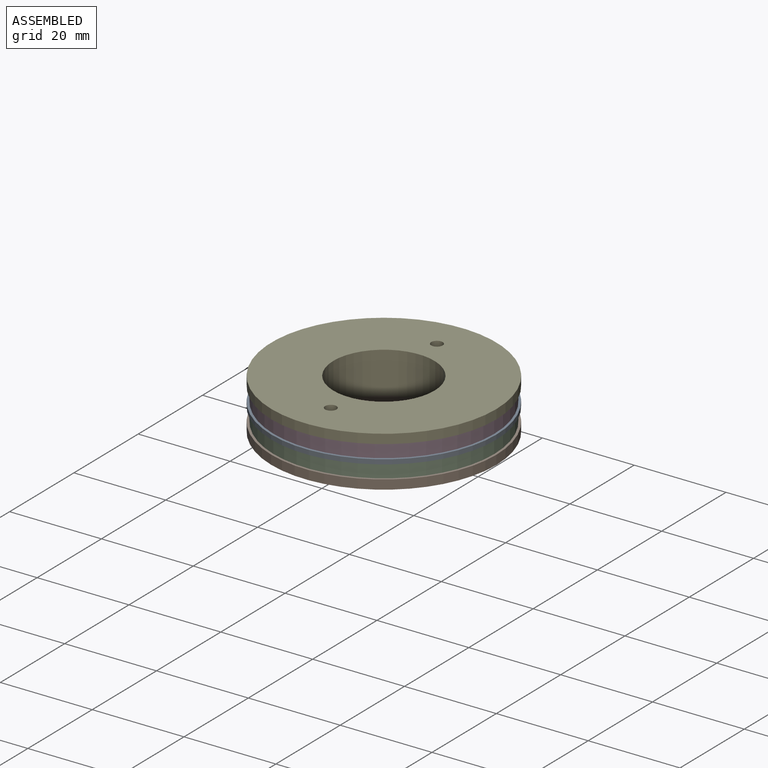
[diagram: assembled view]
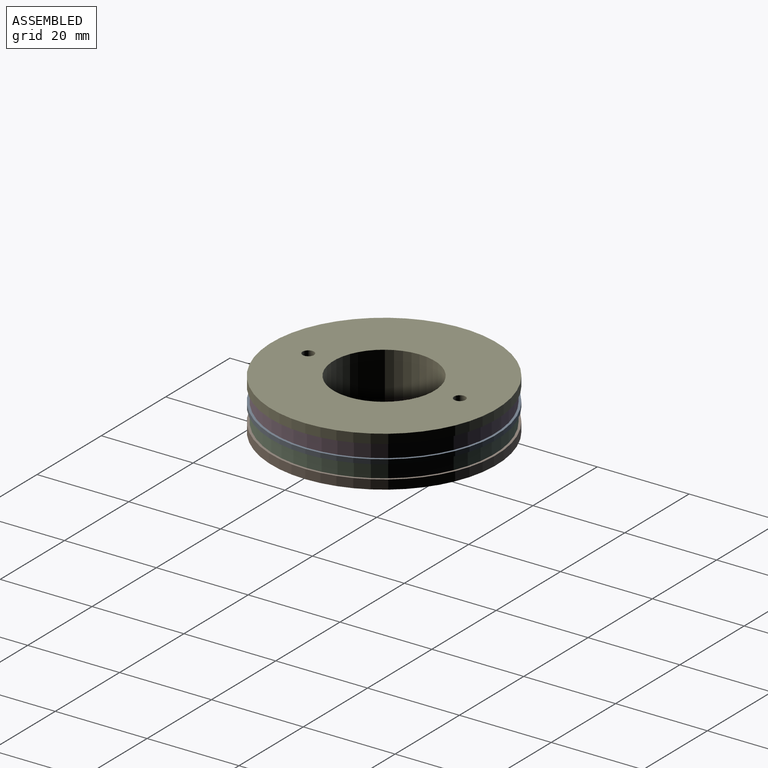
[diagram: assembled view, second angle]
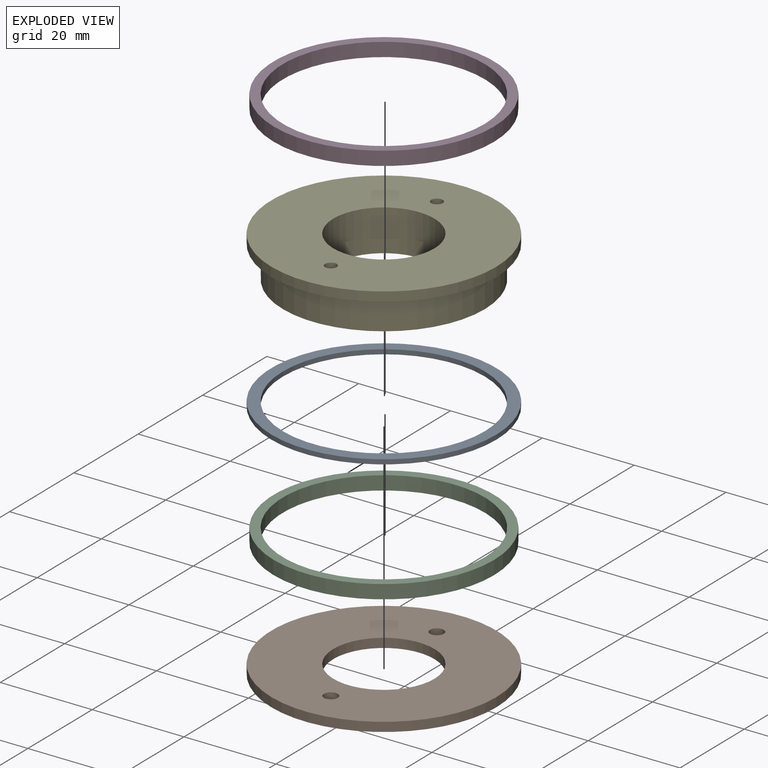
[diagram: exploded view]
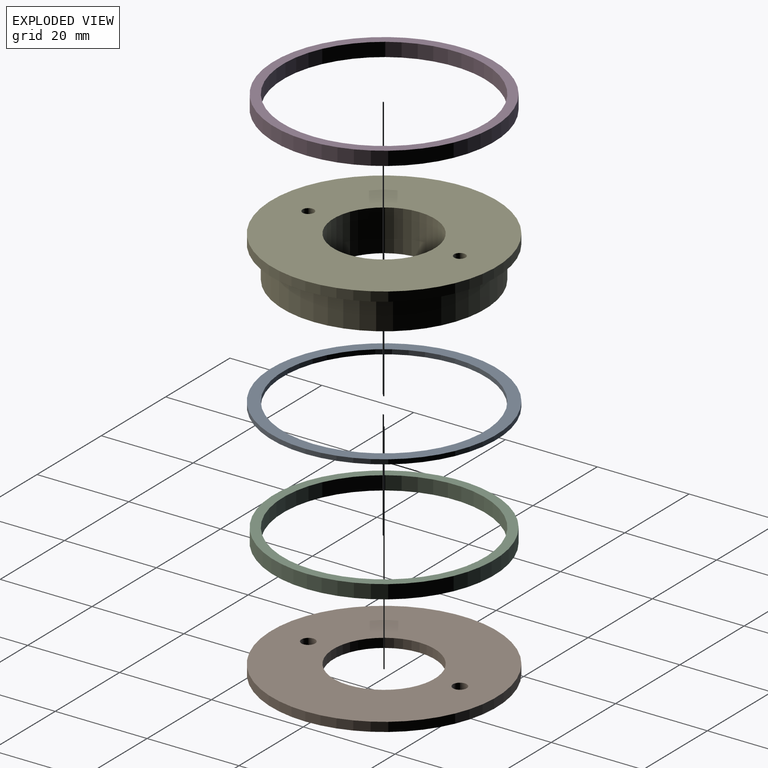
[diagram: exploded view, second angle]
ASSEMBLY  parts=5 mates=4
PART A: 4 faces, bbox 49x49x1 mm
  f0: cylinder r=22mm len=44mm, axis (0,0,-1), area 138.2mm2, adj f2,f3
  f1: cylinder r=24.5mm len=49mm, axis (0,0,-1), area 153.9mm2, adj f2,f3
  f2: plane 49x49mm, normal (0,0,1), area 365.2mm2, adj f0,f1
  f3: plane 49x49mm, normal (0,0,-1), area 365.2mm2, adj f0,f1
PART B: 6 faces, bbox 49x49x2 mm
  f0: cylinder r=24.5mm len=49mm, axis (0,0,-1), area 307.9mm2, adj f1,f2
  f1: plane 49x49mm, normal (0,0,1), area 1491.5mm2, adj f0,f3,f4,f5
  f2: plane 49x49mm, normal (0,0,-1), area 1491.5mm2, adj f0,f3,f4,f5
  f3: cylinder r=11mm len=22mm, axis (0,0,-1), area 138.2mm2, adj f1,f2
  f4: cylinder r=1.5mm len=3mm, axis (0,0,-1), area 18.8mm2, adj f1,f2
  f5: cylinder r=1.5mm len=3mm, axis (0,0,-1), area 18.8mm2, adj f1,f2
PART C: 4 faces, bbox 48x48x3 mm
  f0: cylinder r=22mm len=44mm, axis (0,0,-1), area 414.7mm2, adj f2,f3
  f1: cylinder r=24mm len=48mm, axis (0,0,-1), area 452.4mm2, adj f2,f3
  f2: plane 48x48mm, normal (0,0,1), area 289mm2, adj f0,f1
  f3: plane 48x48mm, normal (0,0,-1), area 289mm2, adj f0,f1
PART D: same geometry as C
PART E: 8 faces, bbox 49x49x9 mm
  f0: cylinder r=24.5mm len=49mm, axis (0,0,-1), area 312.2mm2, adj f2,f4
  f1: plane 44x44mm, normal (0,0,-1), area 1130.6mm2, adj f3,f5,f6,f7
  f2: plane 49x49mm, normal (0,0,1), area 1495.8mm2, adj f0,f3,f6,f7
  f3: cylinder r=11mm len=22mm, axis (0,0,1), area 622mm2, adj f1,f2
  f4: plane 49x49mm, normal (0,0,-1), area 365.2mm2, adj f0,f5
  f5: cylinder r=22mm len=44mm, axis (0,0,1), area 963.7mm2, adj f1,f4
  f6: cylinder r=1.25mm len=9mm, axis (0,0,-1), area 70.7mm2, adj f1,f2
  f7: cylinder r=1.25mm len=9mm, axis (0,0,-1), area 70.7mm2, adj f1,f2
PLACE A rot(axis=(1,0,0),180deg) t=(51.27,-48.71,12.83)mm
PLACE B t=(-29.69,57.13,6.86)mm
PLACE C rot(axis=(1,0,0),180deg) t=(-34.99,53.6,11.83)mm
PLACE D rot(axis=(1,0,0),180deg) t=(-34.99,53.6,15.83)mm
PLACE E t=(-4.7,0.32,8.86)mm
MATE fastened D.f0 <-> E.f3  axis (0,0,1) through (-4.7,0.32,15.83)mm
MATE fastened B.f4 <-> E.f7  axis (0,0,1) through (-4.7,-16.18,8.86)mm
MATE fastened C.f0 <-> A.f0  axis (0,0,1) through (-4.7,0.32,11.83)mm
MATE fastened A.f0 <-> D.f0  axis (0,0,1) through (-4.7,0.32,12.83)mm
